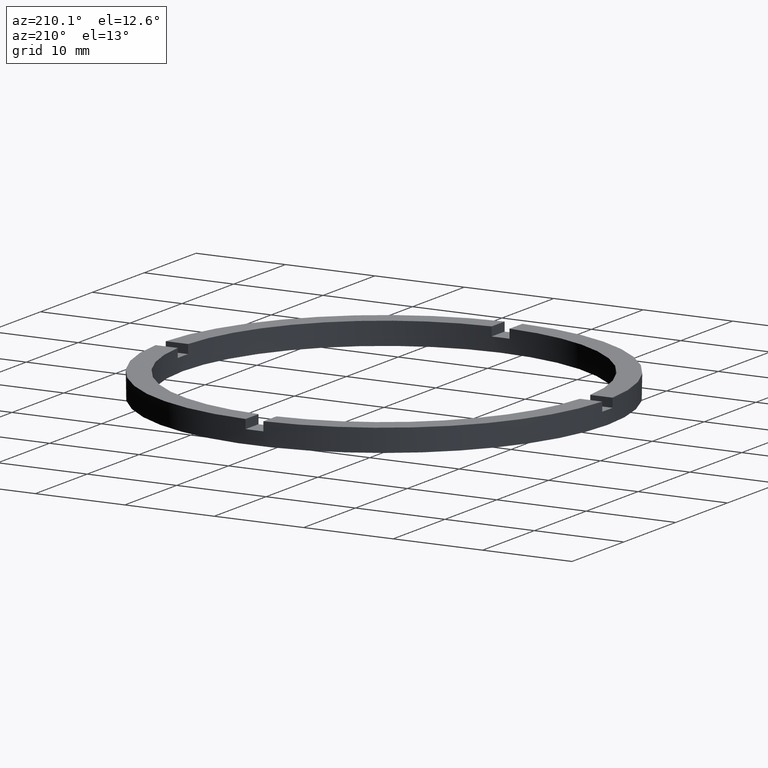
[diagram: clean part render]
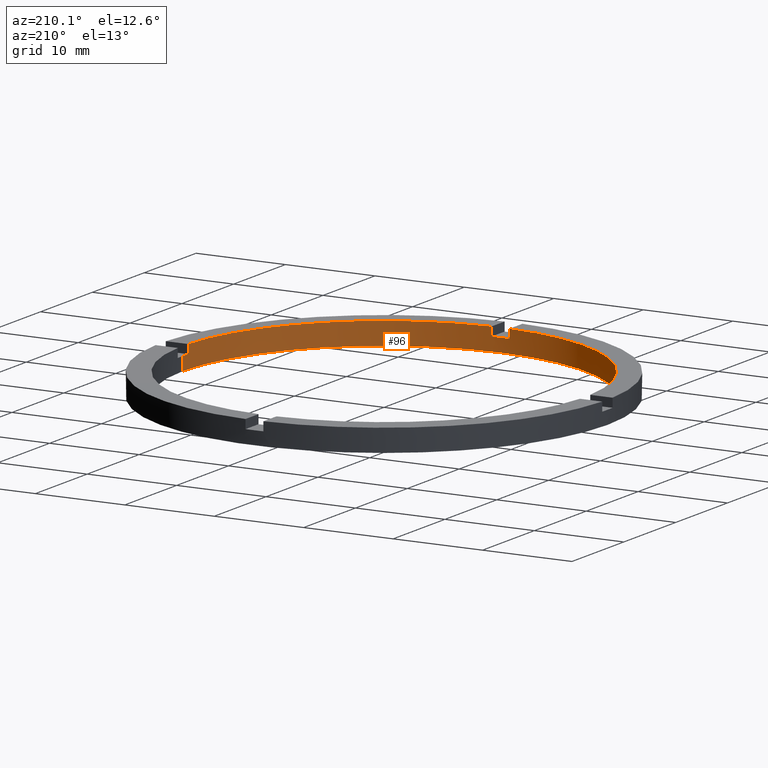
[diagram: same view with one face highlighted and labeled with its STEP entity id]
A machine part, auxiliary view. The second image highlights one B-rep face of the part: STEP entity #96.
In plain terms, the highlighted cylindrical surface (partial cylindrical patch) has radius 22.5 mm, axis along (-0, -0, -1).
Its self-contained STEP definition (entity closure, byte-faithful):
#14 = EDGE_CURVE ( 'NONE', #226, #413, #159, .T. ) ;
#32 = CARTESIAN_POINT ( 'NONE',  ( 22.50000000000000355, 2.755455298081545172E-15, 1.500000000000000000 ) ) ;
#45 = EDGE_CURVE ( 'NONE', #313, #63, #686, .T. ) ;
#53 = ORIENTED_EDGE ( 'NONE', *, *, #131, .T. ) ;
#58 = EDGE_CURVE ( 'NONE', #223, #157, #679, .T. ) ;
#61 = LINE ( 'NONE', #739, #573 ) ;
#63 = VERTEX_POINT ( 'NONE', #776 ) ;
#66 = AXIS2_PLACEMENT_3D ( 'NONE', #613, #364, #500 ) ;
#67 = CARTESIAN_POINT ( 'NONE',  ( 0.9999999999998391287, -22.47776679298903346, 2.500000000000000000 ) ) ;
#72 = DIRECTION ( 'NONE',  ( -1.000000000000000000, 0.000000000000000000, 0.000000000000000000 ) ) ;
#80 = AXIS2_PLACEMENT_3D ( 'NONE', #592, #777, #339 ) ;
#96 = ADVANCED_FACE ( 'NONE', ( #145 ), #678, .F. ) ;
#99 = DIRECTION ( 'NONE',  ( -0.000000000000000000, -0.000000000000000000, -1.000000000000000000 ) ) ;
#106 = DIRECTION ( 'NONE',  ( -0.000000000000000000, -0.000000000000000000, -1.000000000000000000 ) ) ;
#108 = AXIS2_PLACEMENT_3D ( 'NONE', #349, #559, #550 ) ;
#116 = CARTESIAN_POINT ( 'NONE',  ( -22.47776679298902636, -1.000000000000025535, 2.500000000000000000 ) ) ;
#117 = CARTESIAN_POINT ( 'NONE',  ( 0.000000000000000000, 0.000000000000000000, 2.500000000000000000 ) ) ;
#126 = DIRECTION ( 'NONE',  ( 1.000000000000000000, 0.000000000000000000, 0.000000000000000000 ) ) ;
#131 = EDGE_CURVE ( 'NONE', #223, #135, #418, .T. ) ;
#135 = VERTEX_POINT ( 'NONE', #723 ) ;
#144 = VECTOR ( 'NONE', #99, 1000.000000000000000 ) ;
#145 = FACE_OUTER_BOUND ( 'NONE', #158, .T. ) ;
#157 = VERTEX_POINT ( 'NONE', #389 ) ;
#158 = EDGE_LOOP ( 'NONE', ( #533, #665, #531, #432, #480, #492, #53, #496, #729, #569, #260, #463 ) ) ;
#159 = CIRCLE ( 'NONE', #503, 22.50000000000000355 ) ;
#162 = VERTEX_POINT ( 'NONE', #600 ) ;
#167 = LINE ( 'NONE', #346, #676 ) ;
#182 = CIRCLE ( 'NONE', #108, 22.50000000000000355 ) ;
#184 = CARTESIAN_POINT ( 'NONE',  ( -22.50000000000000355, 0.000000000000000000, 0.000000000000000000 ) ) ;
#187 = CIRCLE ( 'NONE', #80, 22.50000000000000355 ) ;
#193 = CIRCLE ( 'NONE', #471, 22.50000000000000355 ) ;
#211 = DIRECTION ( 'NONE',  ( -0.000000000000000000, -0.000000000000000000, -1.000000000000000000 ) ) ;
#212 = EDGE_CURVE ( 'NONE', #226, #762, #167, .T. ) ;
#218 = CARTESIAN_POINT ( 'NONE',  ( -22.47776679298902636, -1.000000000000025535, 2.500000000000000000 ) ) ;
#223 = VERTEX_POINT ( 'NONE', #116 ) ;
#226 = VERTEX_POINT ( 'NONE', #632 ) ;
#227 = AXIS2_PLACEMENT_3D ( 'NONE', #523, #211, #72 ) ;
#241 = CARTESIAN_POINT ( 'NONE',  ( -22.50000000000000355, 0.000000000000000000, 1.500000000000000000 ) ) ;
#260 = ORIENTED_EDGE ( 'NONE', *, *, #580, .T. ) ;
#266 = EDGE_CURVE ( 'NONE', #711, #63, #193, .T. ) ;
#288 = AXIS2_PLACEMENT_3D ( 'NONE', #117, #650, #552 ) ;
#313 = VERTEX_POINT ( 'NONE', #736 ) ;
#331 = EDGE_CURVE ( 'NONE', #481, #157, #707, .T. ) ;
#337 = DIRECTION ( 'NONE',  ( 0.000000000000000000, 0.000000000000000000, 1.000000000000000000 ) ) ;
#339 = DIRECTION ( 'NONE',  ( 1.000000000000000000, 0.000000000000000000, 0.000000000000000000 ) ) ;
#346 = CARTESIAN_POINT ( 'NONE',  ( 22.47776679298901925, -1.000000000000157652, 2.500000000000000000 ) ) ;
#347 = EDGE_CURVE ( 'NONE', #481, #744, #443, .T. ) ;
#349 = CARTESIAN_POINT ( 'NONE',  ( 0.000000000000000000, 0.000000000000000000, 0.000000000000000000 ) ) ;
#353 = CARTESIAN_POINT ( 'NONE',  ( 0.000000000000000000, 0.000000000000000000, 1.500000000000000000 ) ) ;
#359 = CARTESIAN_POINT ( 'NONE',  ( -22.50000000000000355, 0.000000000000000000, 2.500000000000000000 ) ) ;
#364 = DIRECTION ( 'NONE',  ( 0.000000000000000000, 0.000000000000000000, 1.000000000000000000 ) ) ;
#368 = CARTESIAN_POINT ( 'NONE',  ( 22.47776679298901925, -1.000000000000157652, 2.500000000000000000 ) ) ;
#369 = EDGE_CURVE ( 'NONE', #744, #162, #182, .T. ) ;
#378 = DIRECTION ( 'NONE',  ( 1.000000000000000000, 0.000000000000000000, 0.000000000000000000 ) ) ;
#389 = CARTESIAN_POINT ( 'NONE',  ( -22.47776679298902636, -1.000000000000025535, 1.500000000000000000 ) ) ;
#413 = VERTEX_POINT ( 'NONE', #32 ) ;
#418 = CIRCLE ( 'NONE', #288, 22.50000000000000355 ) ;
#432 = ORIENTED_EDGE ( 'NONE', *, *, #347, .F. ) ;
#443 = LINE ( 'NONE', #359, #454 ) ;
#454 = VECTOR ( 'NONE', #758, 1000.000000000000000 ) ;
#463 = ORIENTED_EDGE ( 'NONE', *, *, #212, .F. ) ;
#470 = DIRECTION ( 'NONE',  ( 0.000000000000000000, 0.000000000000000000, 1.000000000000000000 ) ) ;
#471 = AXIS2_PLACEMENT_3D ( 'NONE', #353, #652, #126 ) ;
#473 = EDGE_CURVE ( 'NONE', #711, #135, #475, .T. ) ;
#475 = LINE ( 'NONE', #502, #749 ) ;
#480 = ORIENTED_EDGE ( 'NONE', *, *, #331, .T. ) ;
#481 = VERTEX_POINT ( 'NONE', #241 ) ;
#492 = ORIENTED_EDGE ( 'NONE', *, *, #58, .F. ) ;
#496 = ORIENTED_EDGE ( 'NONE', *, *, #473, .F. ) ;
#500 = DIRECTION ( 'NONE',  ( 1.000000000000000000, 0.000000000000000000, 0.000000000000000000 ) ) ;
#502 = CARTESIAN_POINT ( 'NONE',  ( -1.000000000000160982, -22.47776679298901925, 2.500000000000000000 ) ) ;
#503 = AXIS2_PLACEMENT_3D ( 'NONE', #508, #585, #378 ) ;
#508 = CARTESIAN_POINT ( 'NONE',  ( 0.000000000000000000, 0.000000000000000000, 1.500000000000000000 ) ) ;
#523 = CARTESIAN_POINT ( 'NONE',  ( 0.000000000000000000, 0.000000000000000000, 2.500000000000000000 ) ) ;
#531 = ORIENTED_EDGE ( 'NONE', *, *, #369, .F. ) ;
#533 = ORIENTED_EDGE ( 'NONE', *, *, #14, .T. ) ;
#550 = DIRECTION ( 'NONE',  ( 1.000000000000000000, 0.000000000000000000, 0.000000000000000000 ) ) ;
#552 = DIRECTION ( 'NONE',  ( 1.000000000000000000, 0.000000000000000000, 0.000000000000000000 ) ) ;
#559 = DIRECTION ( 'NONE',  ( 0.000000000000000000, 0.000000000000000000, 1.000000000000000000 ) ) ;
#569 = ORIENTED_EDGE ( 'NONE', *, *, #45, .F. ) ;
#573 = VECTOR ( 'NONE', #653, 1000.000000000000000 ) ;
#580 = EDGE_CURVE ( 'NONE', #313, #762, #187, .T. ) ;
#585 = DIRECTION ( 'NONE',  ( 0.000000000000000000, 0.000000000000000000, 1.000000000000000000 ) ) ;
#592 = CARTESIAN_POINT ( 'NONE',  ( 0.000000000000000000, 0.000000000000000000, 2.500000000000000000 ) ) ;
#600 = CARTESIAN_POINT ( 'NONE',  ( 22.50000000000000355, 2.755455298081545172E-15, 0.000000000000000000 ) ) ;
#613 = CARTESIAN_POINT ( 'NONE',  ( 0.000000000000000000, 0.000000000000000000, 1.500000000000000000 ) ) ;
#632 = CARTESIAN_POINT ( 'NONE',  ( 22.47776679298901925, -1.000000000000157652, 1.500000000000000000 ) ) ;
#650 = DIRECTION ( 'NONE',  ( 0.000000000000000000, 0.000000000000000000, 1.000000000000000000 ) ) ;
#652 = DIRECTION ( 'NONE',  ( -0.000000000000000000, 0.000000000000000000, 1.000000000000000000 ) ) ;
#653 = DIRECTION ( 'NONE',  ( -0.000000000000000000, -0.000000000000000000, -1.000000000000000000 ) ) ;
#657 = EDGE_CURVE ( 'NONE', #413, #162, #61, .T. ) ;
#665 = ORIENTED_EDGE ( 'NONE', *, *, #657, .T. ) ;
#676 = VECTOR ( 'NONE', #337, 1000.000000000000000 ) ;
#678 = CYLINDRICAL_SURFACE ( 'NONE', #227, 22.50000000000000355 ) ;
#679 = LINE ( 'NONE', #218, #144 ) ;
#686 = LINE ( 'NONE', #67, #696 ) ;
#696 = VECTOR ( 'NONE', #106, 1000.000000000000000 ) ;
#707 = CIRCLE ( 'NONE', #66, 22.50000000000000355 ) ;
#711 = VERTEX_POINT ( 'NONE', #748 ) ;
#723 = CARTESIAN_POINT ( 'NONE',  ( -1.000000000000160982, -22.47776679298901925, 2.500000000000000000 ) ) ;
#729 = ORIENTED_EDGE ( 'NONE', *, *, #266, .T. ) ;
#736 = CARTESIAN_POINT ( 'NONE',  ( 0.9999999999998391287, -22.47776679298903346, 2.500000000000000000 ) ) ;
#739 = CARTESIAN_POINT ( 'NONE',  ( 22.50000000000000355, 2.755455298081545172E-15, 2.500000000000000000 ) ) ;
#744 = VERTEX_POINT ( 'NONE', #184 ) ;
#748 = CARTESIAN_POINT ( 'NONE',  ( -1.000000000000160982, -22.47776679298901925, 1.500000000000000000 ) ) ;
#749 = VECTOR ( 'NONE', #470, 1000.000000000000000 ) ;
#758 = DIRECTION ( 'NONE',  ( -0.000000000000000000, -0.000000000000000000, -1.000000000000000000 ) ) ;
#762 = VERTEX_POINT ( 'NONE', #368 ) ;
#776 = CARTESIAN_POINT ( 'NONE',  ( 0.9999999999998391287, -22.47776679298903346, 1.500000000000000000 ) ) ;
#777 = DIRECTION ( 'NONE',  ( 0.000000000000000000, 0.000000000000000000, 1.000000000000000000 ) ) ;